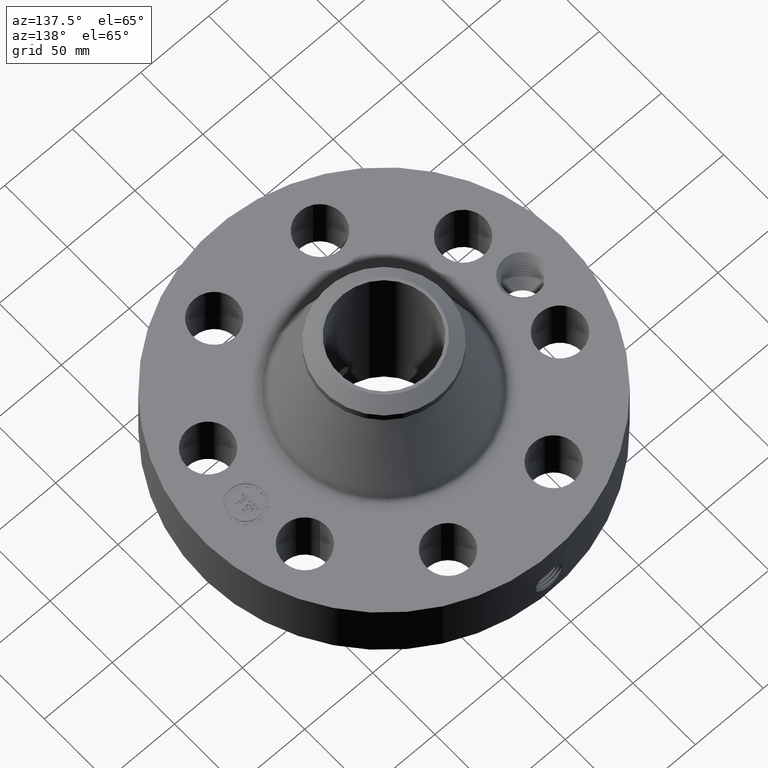
[diagram: clean part render]
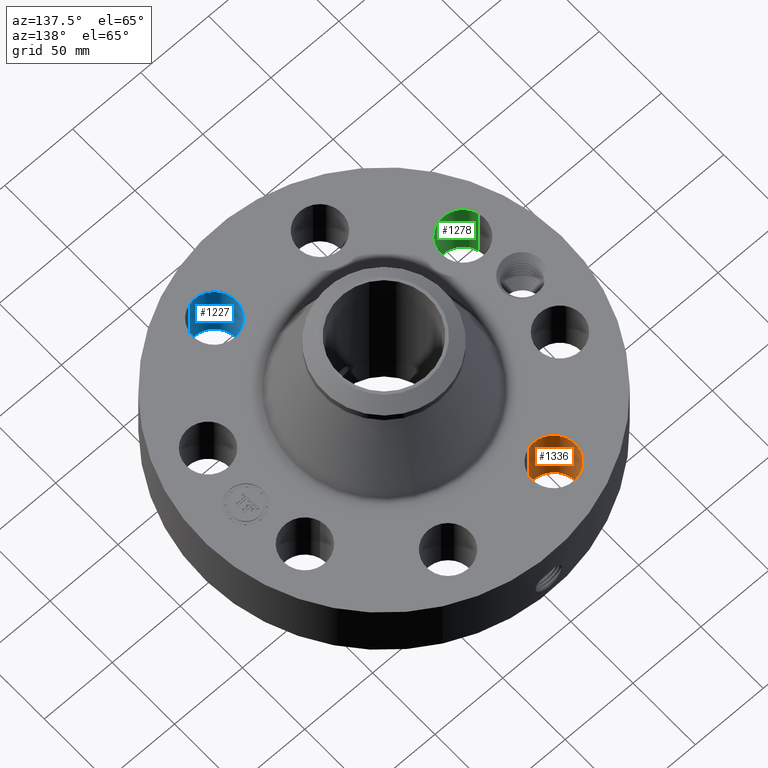
[diagram: same view with three faces highlighted in distinct colors, each labeled with its STEP entity id]
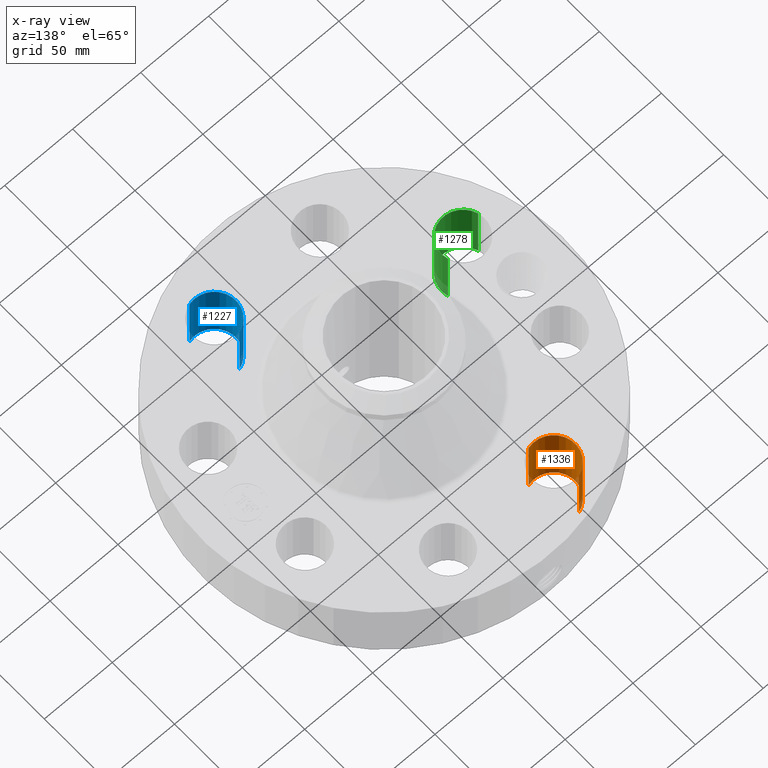
[diagram: x-ray of the same camera — body ghosted, the three highlighted faces saturated]
A machine part, auxiliary view with three faces highlighted in distinct colors.
The next image is the same camera in x-ray (body ghosted, the three faces saturated) — at least one of them is partly hidden behind the body in this view.
Their STEP definitions:

[orange] entity #1336 — the highlighted cylindrical surface (edge-blend (fillet) strip) has radius 15.875 mm, axis along (0, 0, -1).
#339=AXIS2_PLACEMENT_3D('Circle Axis2P3D',#337,#338,$) ;
#672=AXIS2_PLACEMENT_3D('Circle Axis2P3D',#670,#671,$) ;
#1318=AXIS2_PLACEMENT_3D('Cylinder Axis2P3D',#1315,#1316,#1317) ;
#337=CARTESIAN_POINT('Axis2P3D Location',(-1.53073372947,3.69551813006,0.250000000001)) ;
#341=CARTESIAN_POINT('Vertex',(-1.3547715225,3.09579961132,0.250000000001)) ;
#343=CARTESIAN_POINT('Vertex',(-1.70669593643,4.2952366488,0.250000000001)) ;
#665=CARTESIAN_POINT('Vertex',(-1.70669593643,4.2952366488,2.13000000001)) ;
#667=CARTESIAN_POINT('Vertex',(-1.3547715225,3.09579961132,2.13000000001)) ;
#670=CARTESIAN_POINT('Axis2P3D Location',(-1.53073372947,3.69551813006,2.13000000001)) ;
#1315=CARTESIAN_POINT('Axis2P3D Location',(-1.53073372947,3.69551813006,2.12606299213)) ;
#1320=CARTESIAN_POINT('Line Origine',(-1.3547715225,3.09579961132,1.19)) ;
#1325=CARTESIAN_POINT('Line Origine',(-1.70669593643,4.2952366488,1.19)) ;
#338=DIRECTION('Axis2P3D Direction',(0.,0.,-0.0393700787402)) ;
#671=DIRECTION('Axis2P3D Direction',(0.,0.,-0.0393700787402)) ;
#1316=DIRECTION('Axis2P3D Direction',(0.,0.,-0.0393700787402)) ;
#1317=DIRECTION('Axis2P3D XDirection',(-0.0110842335096,0.0377775444876,0.)) ;
#1321=DIRECTION('Vector Direction',(0.,0.,-0.0393700787402)) ;
#1326=DIRECTION('Vector Direction',(0.,0.,-0.0393700787402)) ;
#1322=VECTOR('Line Direction',#1321,0.0393700787402) ;
#1327=VECTOR('Line Direction',#1326,0.0393700787402) ;
#1331=ORIENTED_EDGE('',*,*,#1324,.F.) ;
#1332=ORIENTED_EDGE('',*,*,#345,.T.) ;
#1333=ORIENTED_EDGE('',*,*,#1329,.T.) ;
#1334=ORIENTED_EDGE('',*,*,#674,.F.) ;
#1336=ADVANCED_FACE('PartBody',(#1335),#1319,.F.) ;
#340=CIRCLE('generated circle',#339,0.625000000003) ;
#673=CIRCLE('generated circle',#672,0.625000000003) ;
#1319=CYLINDRICAL_SURFACE('generated cylinder',#1318,0.625000000003) ;
#345=EDGE_CURVE('',#342,#344,#340,.T.) ;
#674=EDGE_CURVE('',#668,#666,#673,.T.) ;
#1324=EDGE_CURVE('',#342,#668,#1323,.F.) ;
#1329=EDGE_CURVE('',#344,#666,#1328,.F.) ;
#1330=EDGE_LOOP('',(#1331,#1332,#1333,#1334)) ;
#1335=FACE_OUTER_BOUND('',#1330,.T.) ;
#1323=LINE('Line',#1320,#1322) ;
#1328=LINE('Line',#1325,#1327) ;
#342=VERTEX_POINT('',#341) ;
#344=VERTEX_POINT('',#343) ;
#666=VERTEX_POINT('',#665) ;
#668=VERTEX_POINT('',#667) ;

[blue] entity #1227 — the highlighted cylindrical surface (edge-blend (fillet) strip) has radius 15.875 mm, axis along (0, -0, -1).
#276=AXIS2_PLACEMENT_3D('Circle Axis2P3D',#274,#275,$) ;
#591=AXIS2_PLACEMENT_3D('Circle Axis2P3D',#589,#590,$) ;
#1202=AXIS2_PLACEMENT_3D('Cylinder Axis2P3D',#1199,#1200,#1201) ;
#269=CARTESIAN_POINT('Vertex',(1.3547715225,-3.09579961132,0.250000000001)) ;
#271=CARTESIAN_POINT('Vertex',(1.70669593643,-4.2952366488,0.250000000001)) ;
#274=CARTESIAN_POINT('Axis2P3D Location',(1.53073372947,-3.69551813006,0.250000000001)) ;
#589=CARTESIAN_POINT('Axis2P3D Location',(1.53073372947,-3.69551813006,2.13000000001)) ;
#593=CARTESIAN_POINT('Vertex',(1.70669593643,-4.2952366488,2.13000000001)) ;
#595=CARTESIAN_POINT('Vertex',(1.3547715225,-3.09579961132,2.13000000001)) ;
#1199=CARTESIAN_POINT('Axis2P3D Location',(1.53073372947,-3.69551813006,2.12606299213)) ;
#1204=CARTESIAN_POINT('Line Origine',(1.3547715225,-3.09579961132,1.19)) ;
#1209=CARTESIAN_POINT('Line Origine',(1.70669593643,-4.2952366488,1.19)) ;
#275=DIRECTION('Axis2P3D Direction',(0.,0.,-0.0393700787402)) ;
#590=DIRECTION('Axis2P3D Direction',(0.,0.,-0.0393700787402)) ;
#1200=DIRECTION('Axis2P3D Direction',(0.,-0.,-0.0393700787402)) ;
#1201=DIRECTION('Axis2P3D XDirection',(0.0110842335096,-0.0377775444876,0.)) ;
#1205=DIRECTION('Vector Direction',(0.,0.,-0.0393700787402)) ;
#1210=DIRECTION('Vector Direction',(0.,0.,-0.0393700787402)) ;
#1206=VECTOR('Line Direction',#1205,0.0393700787402) ;
#1211=VECTOR('Line Direction',#1210,0.0393700787402) ;
#1222=ORIENTED_EDGE('',*,*,#1213,.F.) ;
#1223=ORIENTED_EDGE('',*,*,#278,.T.) ;
#1224=ORIENTED_EDGE('',*,*,#1208,.T.) ;
#1225=ORIENTED_EDGE('',*,*,#597,.F.) ;
#1227=ADVANCED_FACE('PartBody',(#1226),#1203,.F.) ;
#277=CIRCLE('generated circle',#276,0.625000000003) ;
#592=CIRCLE('generated circle',#591,0.625000000003) ;
#1203=CYLINDRICAL_SURFACE('generated cylinder',#1202,0.625000000003) ;
#278=EDGE_CURVE('',#272,#270,#277,.T.) ;
#597=EDGE_CURVE('',#594,#596,#592,.T.) ;
#1208=EDGE_CURVE('',#270,#596,#1207,.F.) ;
#1213=EDGE_CURVE('',#272,#594,#1212,.F.) ;
#1221=EDGE_LOOP('',(#1222,#1223,#1224,#1225)) ;
#1226=FACE_OUTER_BOUND('',#1221,.T.) ;
#1207=LINE('Line',#1204,#1206) ;
#1212=LINE('Line',#1209,#1211) ;
#270=VERTEX_POINT('',#269) ;
#272=VERTEX_POINT('',#271) ;
#594=VERTEX_POINT('',#593) ;
#596=VERTEX_POINT('',#595) ;

[green] entity #1278 — the highlighted cylindrical surface (edge-blend (fillet) strip) has radius 15.875 mm, axis along (-0, 0, -1).
#303=AXIS2_PLACEMENT_3D('Circle Axis2P3D',#301,#302,$) ;
#636=AXIS2_PLACEMENT_3D('Circle Axis2P3D',#634,#635,$) ;
#1260=AXIS2_PLACEMENT_3D('Cylinder Axis2P3D',#1257,#1258,#1259) ;
#301=CARTESIAN_POINT('Axis2P3D Location',(-3.69551813006,-1.53073372947,0.250000000001)) ;
#305=CARTESIAN_POINT('Vertex',(-3.09579961132,-1.3547715225,0.250000000001)) ;
#307=CARTESIAN_POINT('Vertex',(-4.2952366488,-1.70669593643,0.250000000001)) ;
#629=CARTESIAN_POINT('Vertex',(-4.2952366488,-1.70669593643,2.13000000001)) ;
#631=CARTESIAN_POINT('Vertex',(-3.09579961132,-1.3547715225,2.13000000001)) ;
#634=CARTESIAN_POINT('Axis2P3D Location',(-3.69551813006,-1.53073372947,2.13000000001)) ;
#1257=CARTESIAN_POINT('Axis2P3D Location',(-3.69551813006,-1.53073372947,2.12606299213)) ;
#1262=CARTESIAN_POINT('Line Origine',(-3.09579961132,-1.3547715225,1.19)) ;
#1267=CARTESIAN_POINT('Line Origine',(-4.2952366488,-1.70669593643,1.19)) ;
#302=DIRECTION('Axis2P3D Direction',(0.,0.,-0.0393700787402)) ;
#635=DIRECTION('Axis2P3D Direction',(0.,0.,-0.0393700787402)) ;
#1258=DIRECTION('Axis2P3D Direction',(-0.,0.,-0.0393700787402)) ;
#1259=DIRECTION('Axis2P3D XDirection',(-0.0377775444876,-0.0110842335096,0.)) ;
#1263=DIRECTION('Vector Direction',(0.,0.,-0.0393700787402)) ;
#1268=DIRECTION('Vector Direction',(0.,0.,-0.0393700787402)) ;
#1264=VECTOR('Line Direction',#1263,0.0393700787402) ;
#1269=VECTOR('Line Direction',#1268,0.0393700787402) ;
#1273=ORIENTED_EDGE('',*,*,#1266,.F.) ;
#1274=ORIENTED_EDGE('',*,*,#309,.T.) ;
#1275=ORIENTED_EDGE('',*,*,#1271,.T.) ;
#1276=ORIENTED_EDGE('',*,*,#638,.F.) ;
#1278=ADVANCED_FACE('PartBody',(#1277),#1261,.F.) ;
#304=CIRCLE('generated circle',#303,0.625000000003) ;
#637=CIRCLE('generated circle',#636,0.625000000003) ;
#1261=CYLINDRICAL_SURFACE('generated cylinder',#1260,0.625000000003) ;
#309=EDGE_CURVE('',#306,#308,#304,.T.) ;
#638=EDGE_CURVE('',#632,#630,#637,.T.) ;
#1266=EDGE_CURVE('',#306,#632,#1265,.F.) ;
#1271=EDGE_CURVE('',#308,#630,#1270,.F.) ;
#1272=EDGE_LOOP('',(#1273,#1274,#1275,#1276)) ;
#1277=FACE_OUTER_BOUND('',#1272,.T.) ;
#1265=LINE('Line',#1262,#1264) ;
#1270=LINE('Line',#1267,#1269) ;
#306=VERTEX_POINT('',#305) ;
#308=VERTEX_POINT('',#307) ;
#630=VERTEX_POINT('',#629) ;
#632=VERTEX_POINT('',#631) ;